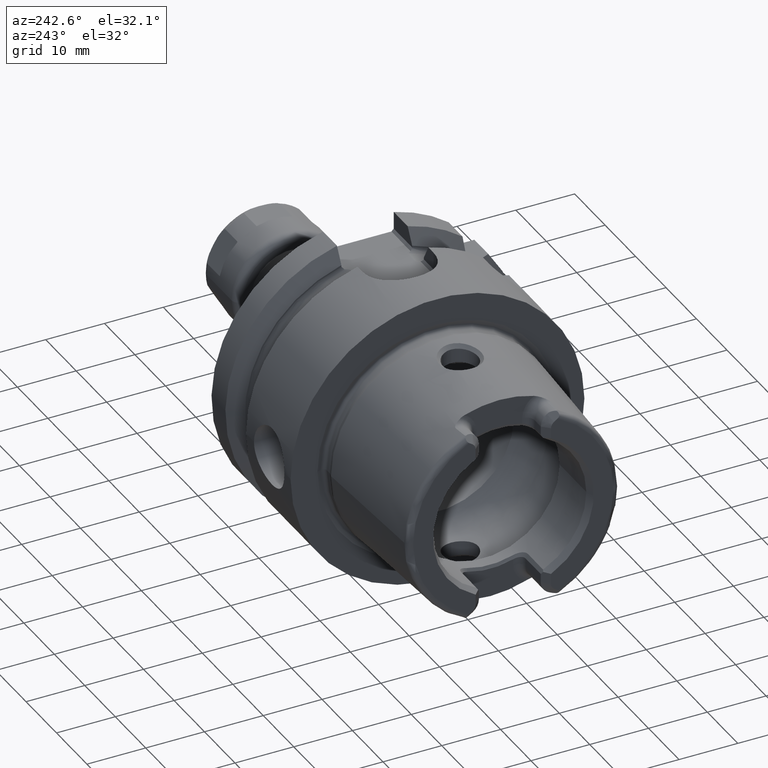
[diagram: clean part render]
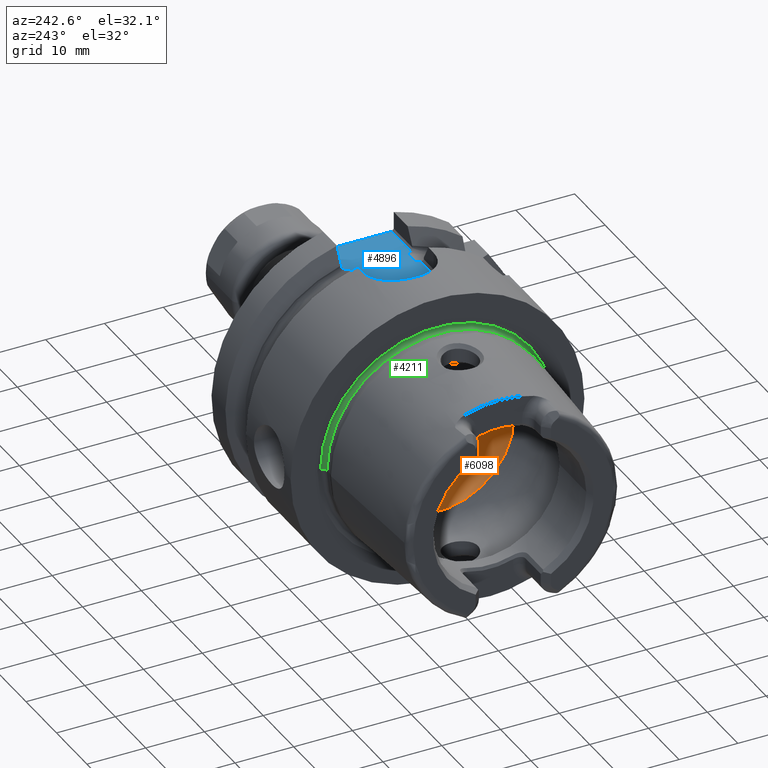
[diagram: same view with three faces highlighted in distinct colors, each labeled with its STEP entity id]
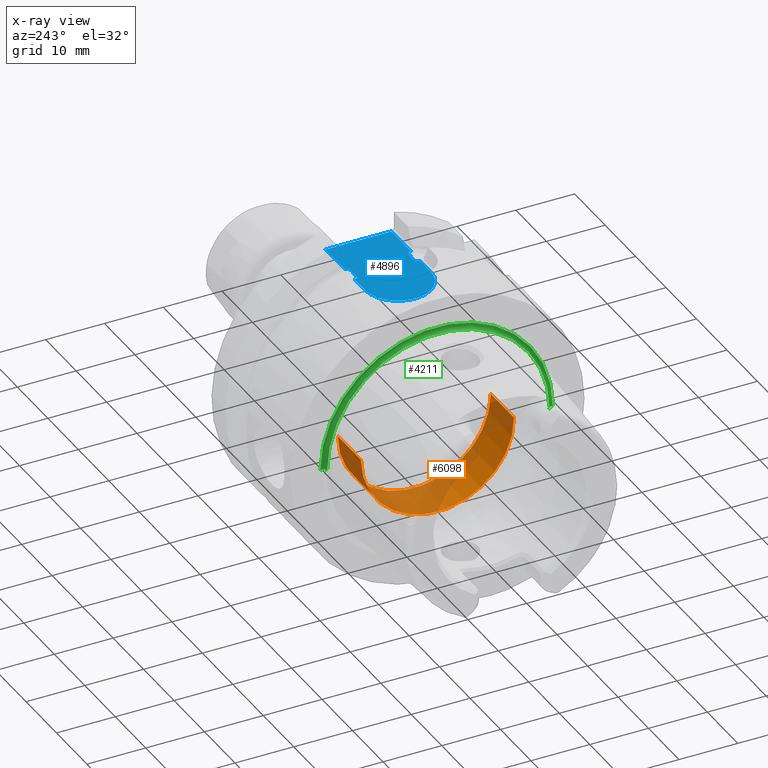
[diagram: x-ray of the same camera — body ghosted, the three highlighted faces saturated]
A machine part, auxiliary view with three faces highlighted in distinct colors.
The next image is the same camera in x-ray (body ghosted, the three faces saturated) — at least one of them is partly hidden behind the body in this view.
Their STEP definitions:

[orange] entity #6098 — the highlighted cylindrical surface (partial cylindrical patch) has radius 13.021 mm, axis along (1, 0, 0).
#2347=CARTESIAN_POINT('',(0.E0,0.E0,0.E0));
#2348=DIRECTION('',(-1.E0,0.E0,0.E0));
#2349=DIRECTION('',(0.E0,1.E0,0.E0));
#2350=AXIS2_PLACEMENT_3D('',#2347,#2348,#2349);
#2366=DIRECTION('',(-1.E0,0.E0,0.E0));
#2367=VECTOR('',#2366,7.614844924580E0);
#2368=CARTESIAN_POINT('',(7.614844924580E0,1.3021E1,0.E0));
#2369=LINE('',#2368,#2367);
#2370=CARTESIAN_POINT('',(7.614844924580E0,0.E0,0.E0));
#2371=DIRECTION('',(-1.E0,0.E0,0.E0));
#2372=DIRECTION('',(0.E0,1.E0,0.E0));
#2373=AXIS2_PLACEMENT_3D('',#2370,#2371,#2372);
#2375=DIRECTION('',(-1.E0,0.E0,0.E0));
#2376=VECTOR('',#2375,7.614844924580E0);
#2377=CARTESIAN_POINT('',(7.614844924580E0,-1.3021E1,0.E0));
#2378=LINE('',#2377,#2376);
#2823=CARTESIAN_POINT('',(7.614844924580E0,1.3021E1,0.E0));
#2825=VERTEX_POINT('',#2823);
#2827=CARTESIAN_POINT('',(7.614844924580E0,-1.3021E1,0.E0));
#2829=VERTEX_POINT('',#2827);
#3172=CARTESIAN_POINT('',(0.E0,1.3021E1,0.E0));
#3173=VERTEX_POINT('',#3172);
#3184=CARTESIAN_POINT('',(0.E0,-1.3021E1,0.E0));
#3185=VERTEX_POINT('',#3184);
#6084=CARTESIAN_POINT('',(-2.66425E1,0.E0,0.E0));
#6085=DIRECTION('',(1.E0,0.E0,0.E0));
#6086=DIRECTION('',(0.E0,-1.E0,0.E0));
#6087=AXIS2_PLACEMENT_3D('',#6084,#6085,#6086);
#6088=CYLINDRICAL_SURFACE('',#6087,1.3021E1);
#6090=ORIENTED_EDGE('',*,*,#6089,.F.);
#6092=ORIENTED_EDGE('',*,*,#6091,.T.);
#6094=ORIENTED_EDGE('',*,*,#6093,.T.);
#6095=ORIENTED_EDGE('',*,*,#6076,.F.);
#6096=EDGE_LOOP('',(#6090,#6092,#6094,#6095));
#6097=FACE_OUTER_BOUND('',#6096,.F.);
#6098=ADVANCED_FACE('',(#6097),#6088,.F.);
#2351=CIRCLE('',#2350,1.3021E1);
#2374=CIRCLE('',#2373,1.3021E1);
#6076=EDGE_CURVE('',#3173,#3185,#2351,.T.);
#6089=EDGE_CURVE('',#2825,#3173,#2369,.T.);
#6091=EDGE_CURVE('',#2825,#2829,#2374,.T.);
#6093=EDGE_CURVE('',#2829,#3185,#2378,.T.);

[blue] entity #4896 — the highlighted planar face has unit normal (0, 0, 1).
#1243=DIRECTION('',(-1.E0,0.E0,0.E0));
#1244=VECTOR('',#1243,2.325E0);
#1245=CARTESIAN_POINT('',(1.91625E1,4.936154880066E0,2.09E1));
#1246=LINE('',#1245,#1244);
#1256=DIRECTION('',(1.E0,0.E0,0.E0));
#1257=VECTOR('',#1256,2.325E0);
#1258=CARTESIAN_POINT('',(1.68375E1,-4.936154880066E0,2.09E1));
#1259=LINE('',#1258,#1257);
#1499=CARTESIAN_POINT('',(1.68375E1,4.936154880066E0,2.09E1));
#1500=CARTESIAN_POINT('',(1.681506439560E1,4.936154880066E0,2.09E1));
#1501=CARTESIAN_POINT('',(1.677123088673E1,4.944673497632E0,2.09E1));
#1502=CARTESIAN_POINT('',(1.670637256749E1,4.982476421130E0,2.09E1));
#1503=CARTESIAN_POINT('',(1.664900590224E1,5.036748664290E0,2.09E1));
#1504=CARTESIAN_POINT('',(1.659405185059E1,5.106990956188E0,2.09E1));
#1505=CARTESIAN_POINT('',(1.654315187720E1,5.189091223446E0,2.09E1));
#1506=CARTESIAN_POINT('',(1.649561034933E1,5.280901992625E0,2.09E1));
#1507=CARTESIAN_POINT('',(1.645046741239E1,5.382525577117E0,2.09E1));
#1508=CARTESIAN_POINT('',(1.640725659792E1,5.494029910782E0,2.09E1));
#1509=CARTESIAN_POINT('',(1.637953976626E1,5.575217300602E0,2.09E1));
#1510=CARTESIAN_POINT('',(1.636596485273E1,5.6175E0,2.09E1));
#1512=CARTESIAN_POINT('',(1.963403514727E1,5.6175E0,2.09E1));
#1513=CARTESIAN_POINT('',(1.962121105487E1,5.577555933860E0,2.09E1));
#1514=CARTESIAN_POINT('',(1.959433966091E1,5.498305669547E0,2.09E1));
#1515=CARTESIAN_POINT('',(1.954802760583E1,5.378400607294E0,2.09E1));
#1516=CARTESIAN_POINT('',(1.949825271637E1,5.267721187528E0,2.09E1));
#1517=CARTESIAN_POINT('',(1.944679938215E1,5.171347555465E0,2.09E1));
#1518=CARTESIAN_POINT('',(1.939476256373E1,5.091349730416E0,2.09E1));
#1519=CARTESIAN_POINT('',(1.934209978086E1,5.027407982916E0,2.09E1));
#1520=CARTESIAN_POINT('',(1.928722183018E1,4.978138118530E0,2.09E1));
#1521=CARTESIAN_POINT('',(1.922686285427E1,4.944417861259E0,2.09E1));
#1522=CARTESIAN_POINT('',(1.918440943347E1,4.936154880066E0,2.09E1));
#1523=CARTESIAN_POINT('',(1.91625E1,4.936154880066E0,2.09E1));
#1525=DIRECTION('',(1.E0,0.E0,0.E0));
#1526=VECTOR('',#1525,6.315964852731E0);
#1527=CARTESIAN_POINT('',(1.963403514727E1,5.6175E0,2.09E1));
#1528=LINE('',#1527,#1526);
#1529=DIRECTION('',(-1.E0,0.E0,0.E0));
#1530=VECTOR('',#1529,6.315964852731E0);
#1531=CARTESIAN_POINT('',(2.595E1,-5.6175E0,2.09E1));
#1532=LINE('',#1531,#1530);
#1533=CARTESIAN_POINT('',(1.91625E1,-4.936154880066E0,2.09E1));
#1534=CARTESIAN_POINT('',(1.918512572534E1,-4.936154880066E0,2.09E1));
#1535=CARTESIAN_POINT('',(1.922927798714E1,-4.944905345685E0,2.09E1));
#1536=CARTESIAN_POINT('',(1.929364299727E1,-4.982466702461E0,2.09E1));
#1537=CARTESIAN_POINT('',(1.935193358380E1,-5.037701592377E0,2.09E1));
#1538=CARTESIAN_POINT('',(1.940696398688E1,-5.108493844033E0,2.09E1));
#1539=CARTESIAN_POINT('',(1.945754115550E1,-5.190349964585E0,2.09E1));
#1540=CARTESIAN_POINT('',(1.950483688118E1,-5.281854502074E0,2.09E1));
#1541=CARTESIAN_POINT('',(1.954984677491E1,-5.383296798535E0,2.09E1));
#1542=CARTESIAN_POINT('',(1.959291205605E1,-5.494511889336E0,2.09E1));
#1543=CARTESIAN_POINT('',(1.962051721705E1,-5.575394790376E0,2.09E1));
#1544=CARTESIAN_POINT('',(1.963403514727E1,-5.6175E0,2.09E1));
#1546=CARTESIAN_POINT('',(1.636596485273E1,-5.6175E0,2.09E1));
#1547=CARTESIAN_POINT('',(1.637723073093E1,-5.582409408806E0,2.09E1));
#1548=CARTESIAN_POINT('',(1.640088079254E1,-5.512208770329E0,2.09E1));
#1549=CARTESIAN_POINT('',(1.644127677987E1,-5.405169222578E0,2.09E1));
#1550=CARTESIAN_POINT('',(1.648542523065E1,-5.302559468502E0,2.09E1));
#1551=CARTESIAN_POINT('',(1.653267499575E1,-5.208006963190E0,2.09E1));
#1552=CARTESIAN_POINT('',(1.658270514026E1,-5.123923103323E0,2.09E1));
#1553=CARTESIAN_POINT('',(1.663659931211E1,-5.050897729353E0,2.09E1));
#1554=CARTESIAN_POINT('',(1.669594649704E1,-4.990432118684E0,2.09E1));
#1555=CARTESIAN_POINT('',(1.676415776210E1,-4.946912528541E0,2.09E1));
#1556=CARTESIAN_POINT('',(1.681240342288E1,-4.936154880066E0,2.09E1));
#1557=CARTESIAN_POINT('',(1.68375E1,-4.936154880066E0,2.09E1));
#1559=DIRECTION('',(-1.E0,-7.852701927823E-8,-7.858421558079E-8));
#1560=VECTOR('',#1559,3.398464844756E0);
#1561=CARTESIAN_POINT('',(1.636596485273E1,-5.6175E0,2.09E1));
#1562=LINE('',#1561,#1560);
#1563=CARTESIAN_POINT('',(1.29675E1,0.E0,2.089999824116E1));
#1564=DIRECTION('',(0.E0,0.E0,-1.E0));
#1565=DIRECTION('',(0.E0,-1.E0,0.E0));
#1566=AXIS2_PLACEMENT_3D('',#1563,#1564,#1565);
#1568=DIRECTION('',(1.E0,-7.853913086518E-8,7.857210474843E-8));
#1569=VECTOR('',#1568,3.398464845393E0);
#1570=CARTESIAN_POINT('',(1.296750000734E1,5.617500266912E0,2.089999973298E1));
#1571=LINE('',#1570,#1569);
#1701=DIRECTION('',(0.E0,1.E0,0.E0));
#1702=VECTOR('',#1701,1.1235E1);
#1703=CARTESIAN_POINT('',(2.595E1,-5.6175E0,2.09E1));
#1704=LINE('',#1703,#1702);
#3034=CARTESIAN_POINT('',(1.68375E1,-4.936154880066E0,2.09E1));
#3036=VERTEX_POINT('',#3034);
#3037=CARTESIAN_POINT('',(1.68375E1,4.936154880066E0,2.09E1));
#3039=VERTEX_POINT('',#3037);
#3042=CARTESIAN_POINT('',(1.91625E1,-4.936154880066E0,2.09E1));
#3044=VERTEX_POINT('',#3042);
#3045=CARTESIAN_POINT('',(1.91625E1,4.936154880066E0,2.09E1));
#3047=VERTEX_POINT('',#3045);
#3051=VERTEX_POINT('',#1510);
#3052=VERTEX_POINT('',#1546);
#3053=VERTEX_POINT('',#1512);
#3054=VERTEX_POINT('',#1544);
#3078=CARTESIAN_POINT('',(1.29675E1,-5.617499842972E0,2.089999824116E1));
#3079=CARTESIAN_POINT('',(1.29675E1,5.617499842972E0,2.089999824116E1));
#3080=VERTEX_POINT('',#3078);
#3081=VERTEX_POINT('',#3079);
#3090=CARTESIAN_POINT('',(2.595E1,-5.6175E0,2.09E1));
#3092=VERTEX_POINT('',#3090);
#3095=CARTESIAN_POINT('',(2.595E1,5.6175E0,2.09E1));
#3097=VERTEX_POINT('',#3095);
#4871=CARTESIAN_POINT('',(0.E0,0.E0,2.09E1));
#4872=DIRECTION('',(0.E0,0.E0,1.E0));
#4873=DIRECTION('',(1.E0,0.E0,0.E0));
#4874=AXIS2_PLACEMENT_3D('',#4871,#4872,#4873);
#4875=PLANE('',#4874);
#4876=ORIENTED_EDGE('',*,*,#4636,.F.);
#4877=ORIENTED_EDGE('',*,*,#4655,.F.);
#4879=ORIENTED_EDGE('',*,*,#4878,.F.);
#4880=ORIENTED_EDGE('',*,*,#4866,.T.);
#4882=ORIENTED_EDGE('',*,*,#4881,.F.);
#4884=ORIENTED_EDGE('',*,*,#4883,.T.);
#4886=ORIENTED_EDGE('',*,*,#4885,.F.);
#4887=ORIENTED_EDGE('',*,*,#4668,.F.);
#4888=ORIENTED_EDGE('',*,*,#4619,.F.);
#4890=ORIENTED_EDGE('',*,*,#4889,.T.);
#4892=ORIENTED_EDGE('',*,*,#4891,.T.);
#4893=ORIENTED_EDGE('',*,*,#4848,.T.);
#4894=EDGE_LOOP('',(#4876,#4877,#4879,#4880,#4882,#4884,#4886,#4887,#4888,#4890,
#4892,#4893));
#4895=FACE_OUTER_BOUND('',#4894,.F.);
#4896=ADVANCED_FACE('',(#4895),#4875,.T.);
#1511=B_SPLINE_CURVE_WITH_KNOTS('',3,(#1499,#1500,#1501,#1502,#1503,#1504,#1505,
#1506,#1507,#1508,#1509,#1510),.UNSPECIFIED.,.F.,.F.,(4,1,1,1,1,1,1,1,1,4),
(0.E0,1.111111111111E-1,2.222222222222E-1,3.333333333333E-1,4.444444444444E-1,
5.555555555556E-1,6.666666666667E-1,7.777777777778E-1,8.888888888889E-1,1.E0),
.UNSPECIFIED.);
#1524=B_SPLINE_CURVE_WITH_KNOTS('',3,(#1512,#1513,#1514,#1515,#1516,#1517,#1518,
#1519,#1520,#1521,#1522,#1523),.UNSPECIFIED.,.F.,.F.,(4,1,1,1,1,1,1,1,1,4),
(0.E0,1.111111111111E-1,2.222222222222E-1,3.333333333333E-1,4.444444444444E-1,
5.555555555556E-1,6.666666666667E-1,7.777777777778E-1,8.888888888889E-1,1.E0),
.UNSPECIFIED.);
#1545=B_SPLINE_CURVE_WITH_KNOTS('',3,(#1533,#1534,#1535,#1536,#1537,#1538,#1539,
#1540,#1541,#1542,#1543,#1544),.UNSPECIFIED.,.F.,.F.,(4,1,1,1,1,1,1,1,1,4),
(0.E0,1.111111111111E-1,2.222222222222E-1,3.333333333333E-1,4.444444444444E-1,
5.555555555556E-1,6.666666666667E-1,7.777777777778E-1,8.888888888889E-1,1.E0),
.UNSPECIFIED.);
#1558=B_SPLINE_CURVE_WITH_KNOTS('',3,(#1546,#1547,#1548,#1549,#1550,#1551,#1552,
#1553,#1554,#1555,#1556,#1557),.UNSPECIFIED.,.F.,.F.,(4,1,1,1,1,1,1,1,1,4),
(0.E0,1.111111111111E-1,2.222222222222E-1,3.333333333333E-1,4.444444444444E-1,
5.555555555556E-1,6.666666666667E-1,7.777777777778E-1,8.888888888889E-1,1.E0),
.UNSPECIFIED.);
#1567=CIRCLE('',#1566,5.617499842972E0);
#4619=EDGE_CURVE('',#3052,#3036,#1558,.T.);
#4636=EDGE_CURVE('',#3039,#3051,#1511,.T.);
#4655=EDGE_CURVE('',#3047,#3039,#1246,.T.);
#4668=EDGE_CURVE('',#3036,#3044,#1259,.T.);
#4848=EDGE_CURVE('',#3081,#3051,#1571,.T.);
#4866=EDGE_CURVE('',#3053,#3097,#1528,.T.);
#4878=EDGE_CURVE('',#3053,#3047,#1524,.T.);
#4881=EDGE_CURVE('',#3092,#3097,#1704,.T.);
#4883=EDGE_CURVE('',#3092,#3054,#1532,.T.);
#4885=EDGE_CURVE('',#3044,#3054,#1545,.T.);
#4889=EDGE_CURVE('',#3052,#3080,#1562,.T.);
#4891=EDGE_CURVE('',#3080,#3081,#1567,.T.);

[green] entity #4211 — the highlighted toroidal blend (fillet) surface has major radius 19.5548 mm and minor (blend) radius 0.6 mm.
#834=CARTESIAN_POINT('',(-3.021696305237E-1,0.E0,0.E0));
#835=DIRECTION('',(-1.E0,0.E0,0.E0));
#836=DIRECTION('',(0.E0,-1.E0,0.E0));
#837=AXIS2_PLACEMENT_3D('',#834,#835,#836);
#839=CARTESIAN_POINT('',(2.560809102655E-1,0.E0,0.E0));
#840=DIRECTION('',(-1.E0,0.E0,0.E0));
#841=DIRECTION('',(0.E0,-1.E0,0.E0));
#842=AXIS2_PLACEMENT_3D('',#839,#840,#841);
#844=CARTESIAN_POINT('',(-3.021696305237E-1,1.95548E1,0.E0));
#845=DIRECTION('',(0.E0,0.E0,-1.E0));
#846=DIRECTION('',(9.304175679820E-1,3.665012267243E-1,0.E0));
#847=AXIS2_PLACEMENT_3D('',#844,#845,#846);
#849=CARTESIAN_POINT('',(-3.021696305237E-1,-1.95548E1,0.E0));
#850=DIRECTION('',(0.E0,0.E0,1.E0));
#851=DIRECTION('',(9.304175679820E-1,-3.665012267243E-1,0.E0));
#852=AXIS2_PLACEMENT_3D('',#849,#850,#851);
#2794=CARTESIAN_POINT('',(2.560809102655E-1,-1.977470073603E1,0.E0));
#2795=CARTESIAN_POINT('',(-3.021696305237E-1,-1.89548E1,0.E0));
#2796=VERTEX_POINT('',#2794);
#2797=VERTEX_POINT('',#2795);
#2802=CARTESIAN_POINT('',(2.560809102655E-1,1.977470073603E1,0.E0));
#2803=CARTESIAN_POINT('',(-3.021696305237E-1,1.89548E1,0.E0));
#2804=VERTEX_POINT('',#2802);
#2805=VERTEX_POINT('',#2803);
#4197=CARTESIAN_POINT('',(-3.021696305237E-1,0.E0,0.E0));
#4198=DIRECTION('',(-1.E0,0.E0,0.E0));
#4199=DIRECTION('',(0.E0,1.E0,0.E0));
#4200=AXIS2_PLACEMENT_3D('',#4197,#4198,#4199);
#4201=TOROIDAL_SURFACE('',#4200,1.95548E1,6.E-1);
#4203=ORIENTED_EDGE('',*,*,#4202,.T.);
#4204=ORIENTED_EDGE('',*,*,#4192,.T.);
#4206=ORIENTED_EDGE('',*,*,#4205,.F.);
#4208=ORIENTED_EDGE('',*,*,#4207,.F.);
#4209=EDGE_LOOP('',(#4203,#4204,#4206,#4208));
#4210=FACE_OUTER_BOUND('',#4209,.F.);
#4211=ADVANCED_FACE('',(#4210),#4201,.F.);
#838=CIRCLE('',#837,1.89548E1);
#843=CIRCLE('',#842,1.977470073603E1);
#848=CIRCLE('',#847,6.E-1);
#853=CIRCLE('',#852,6.E-1);
#4192=EDGE_CURVE('',#2797,#2805,#838,.T.);
#4202=EDGE_CURVE('',#2796,#2797,#853,.T.);
#4205=EDGE_CURVE('',#2804,#2805,#848,.T.);
#4207=EDGE_CURVE('',#2796,#2804,#843,.T.);